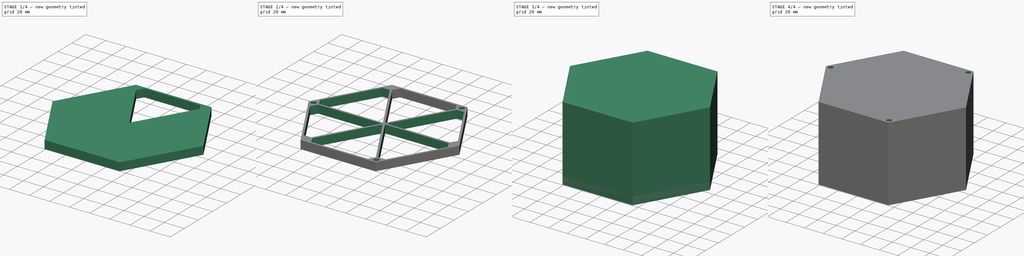
[diagram: build sequence overview — one tinted view per stage of 4, left to right]
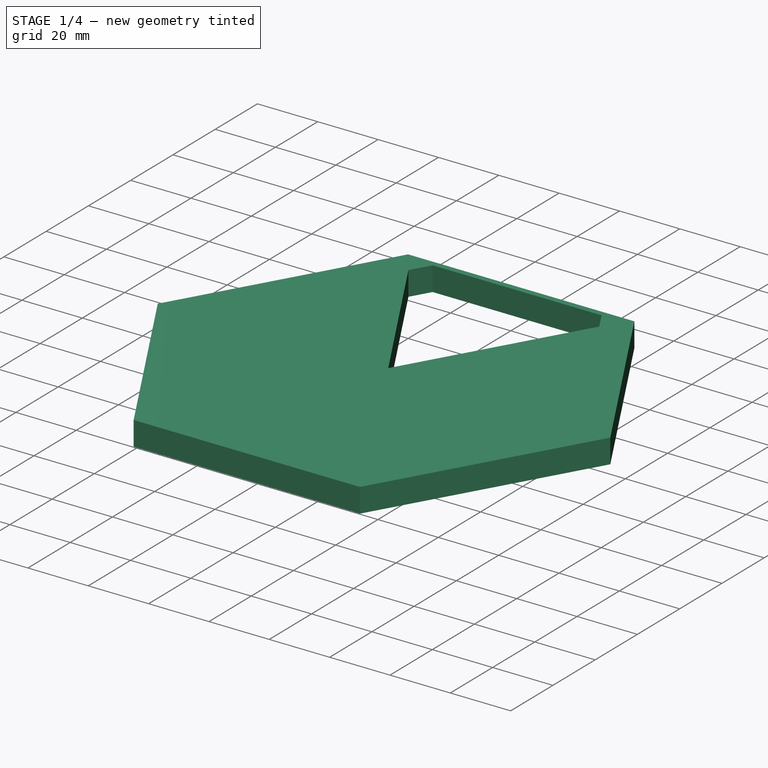
[diagram: stage 1 of 4 — iso view after this stage's code; geometry added in this stage tinted green]
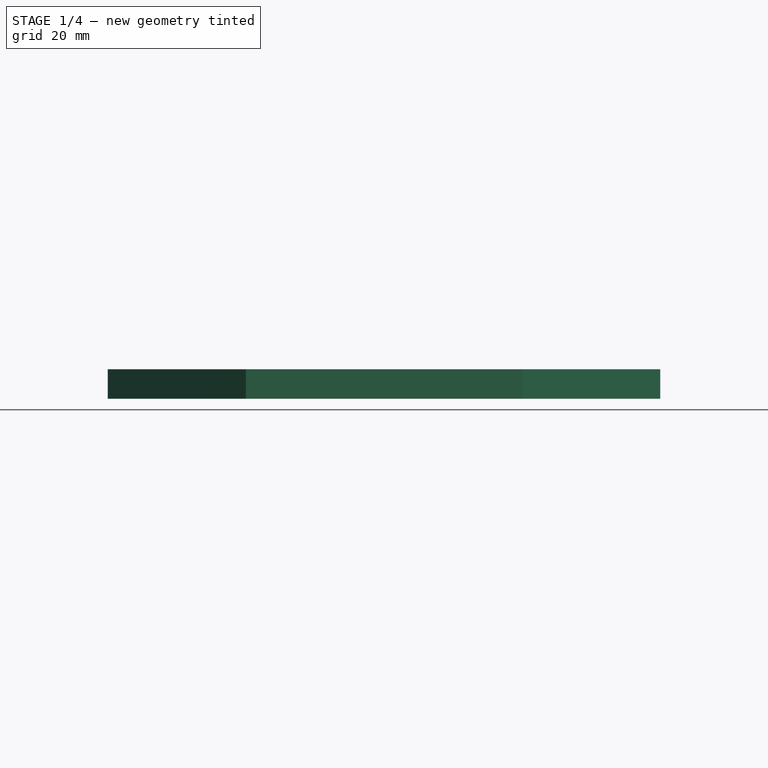
[diagram: stage 1 of 4 — front view after this stage's code; geometry added in this stage tinted green]
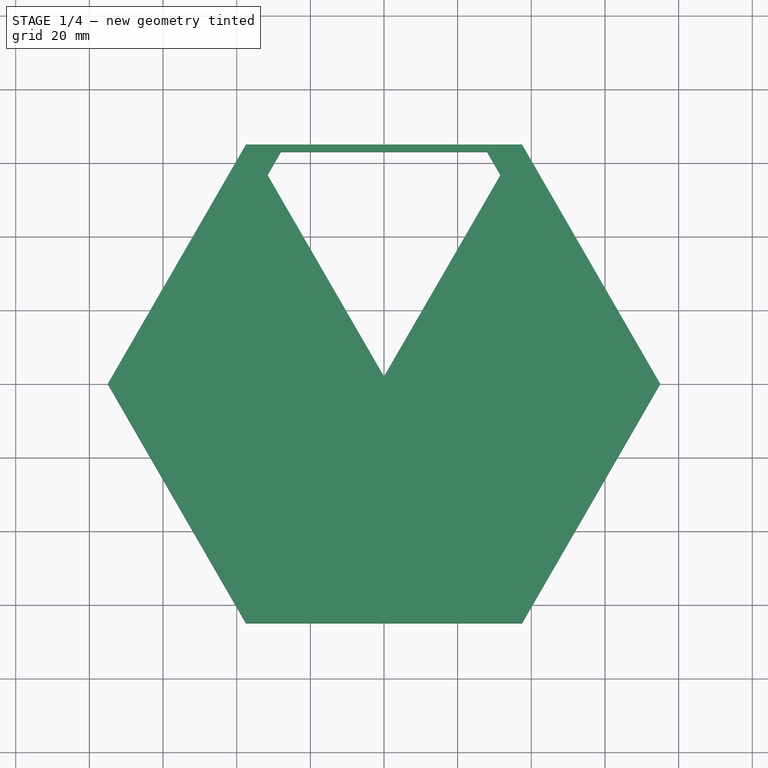
[diagram: stage 1 of 4 — top view after this stage's code; geometry added in this stage tinted green]
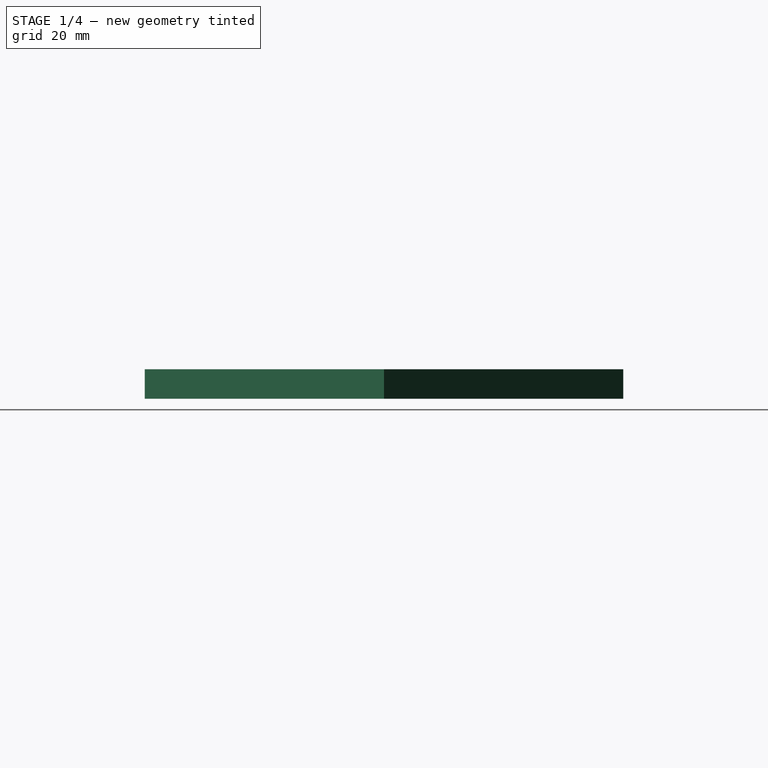
[diagram: stage 1 of 4 — right view after this stage's code; geometry added in this stage tinted green]
FCSTD DOCUMENT  (FreeCAD 0.19R)
Label: MultiPlantPotter_prototype2
License: All rights reserved
LicenseURL: http://en.wikipedia.org/wiki/All_rights_reserved
objects: Sketcher::SketchObject×6, PartDesign::Pocket×4, PartDesign::PolarPattern×4, PartDesign::Pad×2, PartDesign::Body×2
note: 24 computed .brp shape members not serialized (recipe doc carries the construction recipe); baked Part::Feature solids carry a one-line shape summary decoded from their .brp

FEATURE [PartDesign::Body] Body  label="pot"
  Group = -> [Sketch,Pad,Sketch001,Pocket,PolarPattern,Sketch002,Pocket001,PolarPattern001]
  Origin = -> Origin
  Tip = -> PolarPattern001
FEATURE [Sketcher::SketchObject] Sketch003
  FullyConstrained = true
  MapMode = 5
  Support = -> [XY_Plane001]
  sketch-geometry (1):
    g0: Circle CenterX=-70 CenterY=0 CenterZ=0 NormalX=0 NormalY=0 NormalZ=1 AngleXU=0 Radius=2.5
  constraints (3):
    c: Radius(g0) = 2.5
    c: Distance(g-1,g0) = 70
    c: DistanceY(g0,g-1) = 0
FEATURE [Sketcher::SketchObject] Sketch004
  FullyConstrained = false
  MapMode = 5
  Support = -> [XY_Plane001]
  sketch-geometry (5):
    g0: LineSegment StartX=3.6e-15 StartY=2 StartZ=0 EndX=31.626 EndY=56.7196 EndZ=0
    g1: LineSegment StartX=28 StartY=63 StartZ=0 EndX=-28 EndY=63 EndZ=0
    g2: LineSegment StartX=-31.626 StartY=56.7196 StartZ=0 EndX=3.6e-15 EndY=2 EndZ=0
    g3: LineSegment StartX=28 StartY=63 StartZ=0 EndX=31.626 EndY=56.7196 EndZ=0
    g4: LineSegment StartX=-31.626 StartY=56.7196 StartZ=0 EndX=-28 EndY=63 EndZ=0
  constraints (13):
    c: PointOnObject(g0,g-2)
    c: Horizontal(g1)
    c: Coincident(g2,g0)
    c: DistanceY(g-1,g0) = 2
    c: Angle(g3) = -1.0472
    c: Angle(g4) = 1.0472
    c: Coincident(g2,g4)
    c: Coincident(g0,g3)
    c: Coincident(g1,g3)
    c: Coincident(g1,g4)
    c: Symmetric(g2,g0,g-2)
    c: DistanceY(g0,g1) = 61
    c: DistanceX(g1,g1) = 56
FEATURE [Sketcher::SketchObject] Sketch005
  FullyConstrained = true
  MapMode = 5
  Support = -> [XY_Plane001]
  sketch-geometry (7):
    g0: LineSegment StartX=75 StartY=0 StartZ=0 EndX=37.5 EndY=64.9519 EndZ=0
    g1: LineSegment StartX=37.5 StartY=64.9519 StartZ=0 EndX=-37.5 EndY=64.9519 EndZ=0
    g2: LineSegment StartX=-37.5 StartY=64.9519 StartZ=0 EndX=-75 EndY=0 EndZ=0
    g3: LineSegment StartX=-75 StartY=0 StartZ=0 EndX=-37.5 EndY=-64.9519 EndZ=0
    g4: LineSegment StartX=-37.5 StartY=-64.9519 StartZ=0 EndX=37.5 EndY=-64.9519 EndZ=0
    g5: LineSegment StartX=37.5 StartY=-64.9519 StartZ=0 EndX=75 EndY=0 EndZ=0
    g6: Circle CenterX=0 CenterY=0 CenterZ=0 NormalX=0 NormalY=0 NormalZ=1 AngleXU=0 Radius=75
  constraints (16):
    c: Coincident(g0,g1)
    c: Coincident(g1,g2)
    c: Coincident(g2,g3)
    c: Coincident(g3,g4)
    c: Coincident(g4,g5)
    c: Coincident(g5,g0)
    c: Equal(g0, g1-g5) x5
    c: PointOnObject(g0,g6)
    c: PointOnObject(g1,g6)
    c: PointOnObject(g2,g6)
    c: PointOnObject(g3,g6)
    c: PointOnObject(g4,g6)
    c: PointOnObject(g5,g6)
    c: Coincident(g6,g-1)
    c: PointOnObject(g5,g-1)
    c: Radius(g6) = 75
FEATURE [PartDesign::Pad] Pad001
  Direction = (1,1,1)
  Length = 8
  Length2 = 100
  Profile = -> Sketch005
  Type = 0
FEATURE [PartDesign::Pocket] Pocket002
  BaseFeature = -> Pad001
  Length = 78
  Length2 = 100
  Profile = -> Sketch004
  Reversed = true
  Type = 0
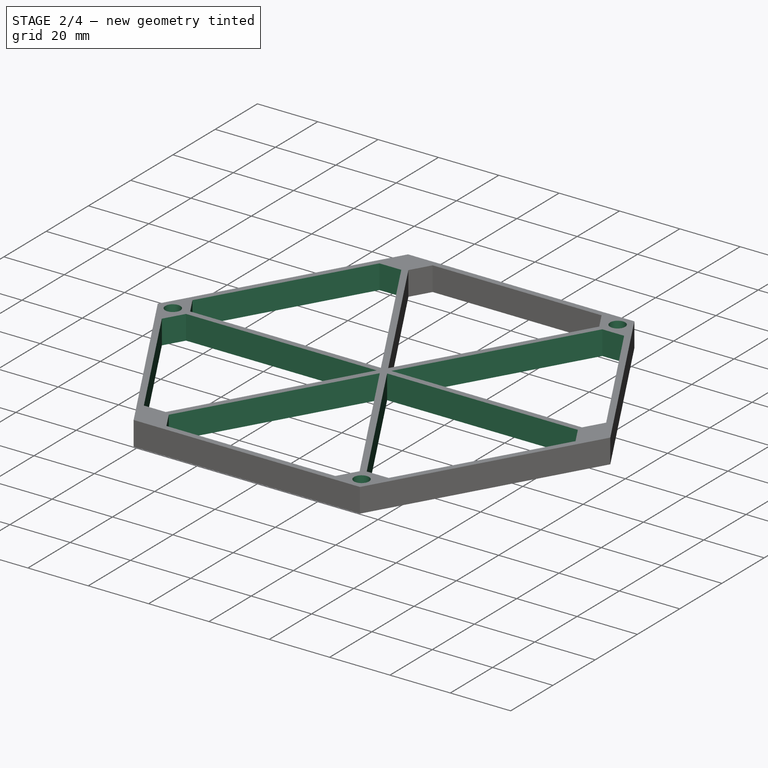
[diagram: stage 2 of 4 — iso view after this stage's code; geometry added in this stage tinted green]
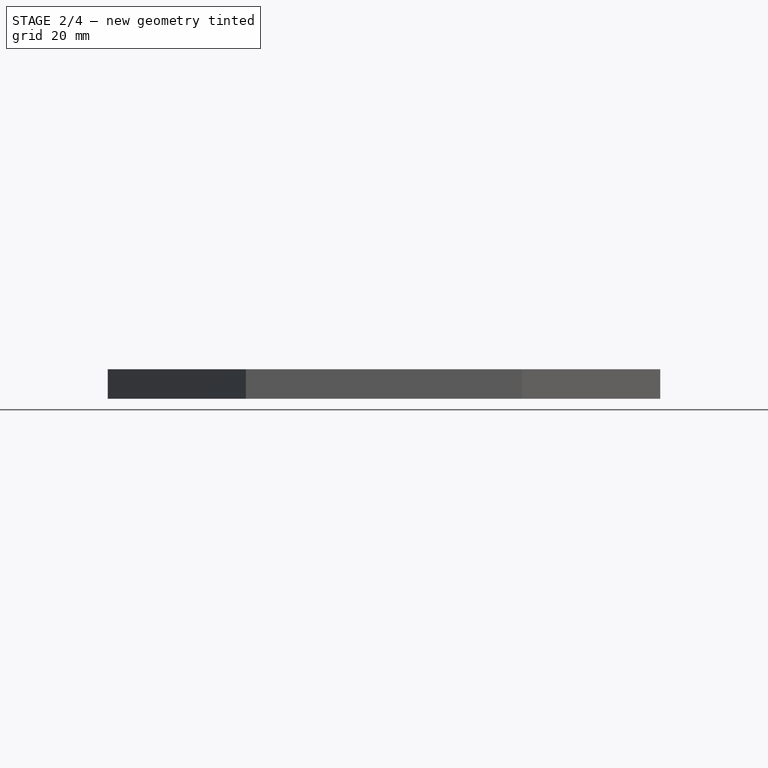
[diagram: stage 2 of 4 — front view after this stage's code; geometry added in this stage tinted green]
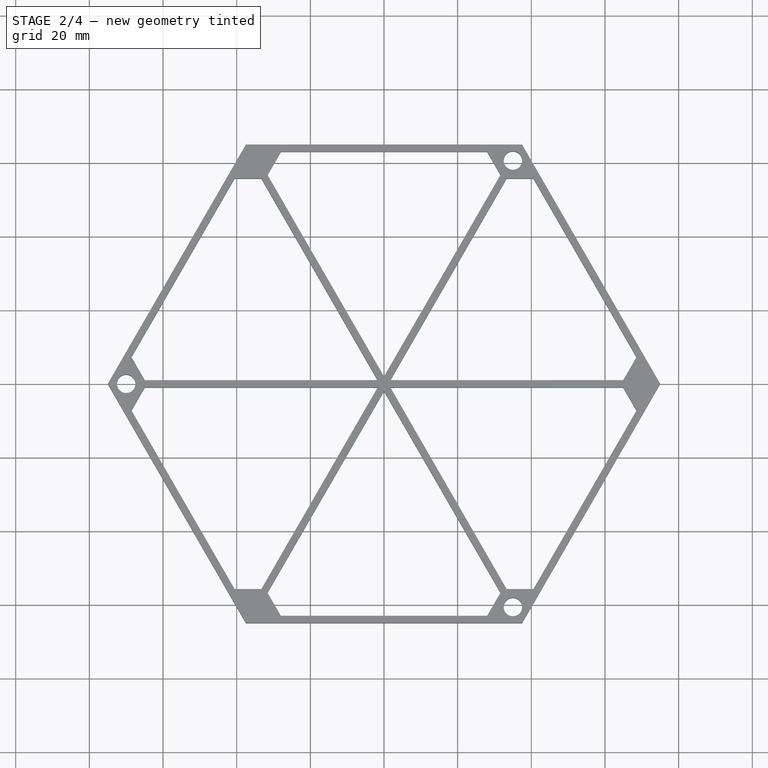
[diagram: stage 2 of 4 — top view after this stage's code; geometry added in this stage tinted green]
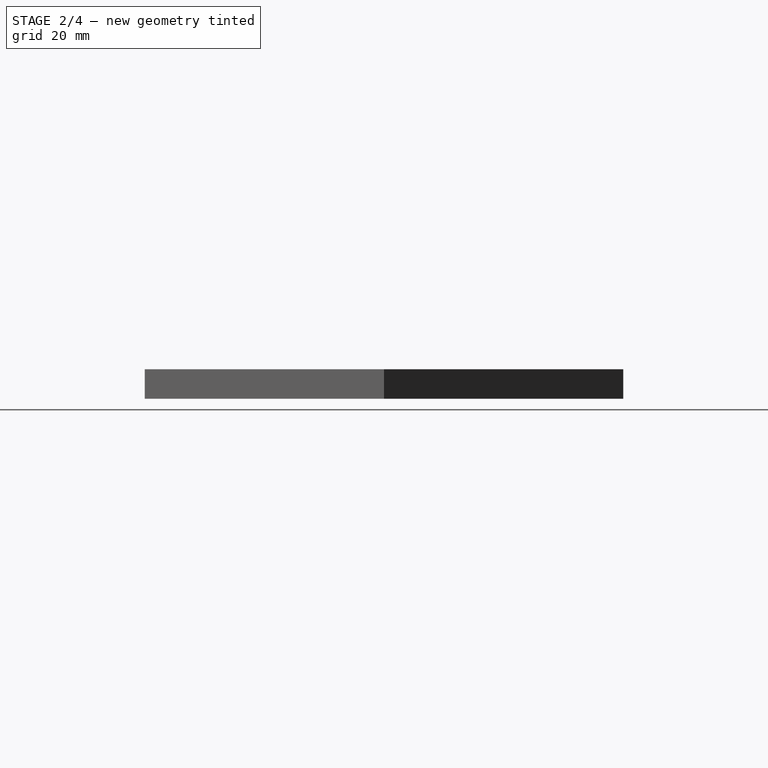
[diagram: stage 2 of 4 — right view after this stage's code; geometry added in this stage tinted green]
FEATURE [PartDesign::PolarPattern] PolarPattern002
  Angle = 360
  Axis = -> Sketch004 [N_Axis]
  BaseFeature = -> Pocket002
  Occurrences = 6
  Originals = -> [Pocket002]
FEATURE [PartDesign::Pocket] Pocket003
  BaseFeature = -> PolarPattern002
  Length = 5
  Length2 = 100
  Profile = -> Sketch003
  Reversed = true
  Type = 1
FEATURE [PartDesign::PolarPattern] PolarPattern003
  Angle = 360
  Axis = -> Sketch003 [N_Axis]
  BaseFeature = -> Pocket003
  Occurrences = 3
  Originals = -> [Pocket003]
FEATURE [PartDesign::Body] Body001  label="support"
  Group = -> [Sketch005,Pad001,Sketch004,Pocket002,PolarPattern002,Sketch003,Pocket003,PolarPattern003]
  Origin = -> Origin001
  Placement = pos=(0,0,-100) rot=(0,0,1;0rad)
  Tip = -> PolarPattern003
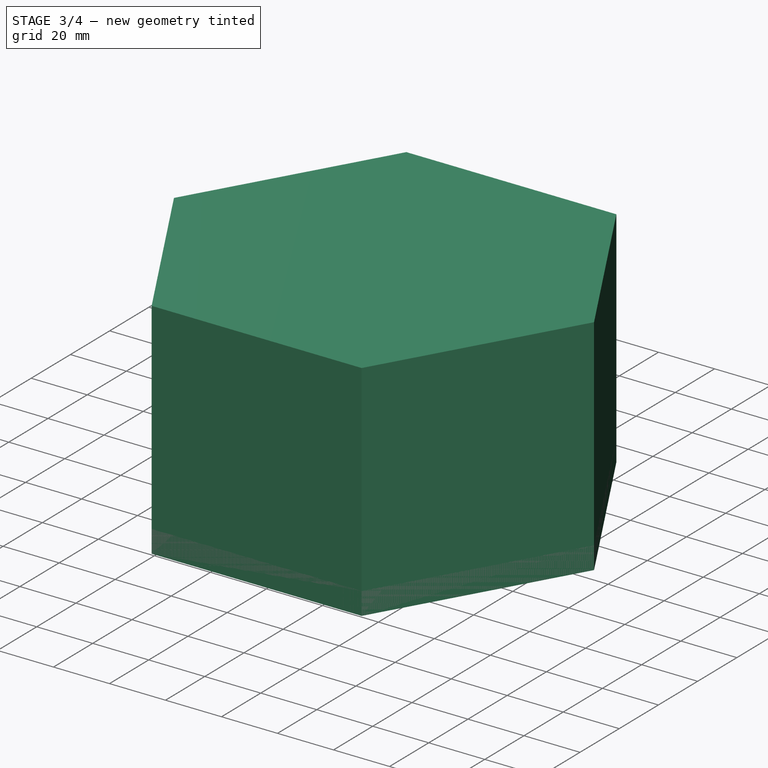
[diagram: stage 3 of 4 — iso view after this stage's code; geometry added in this stage tinted green]
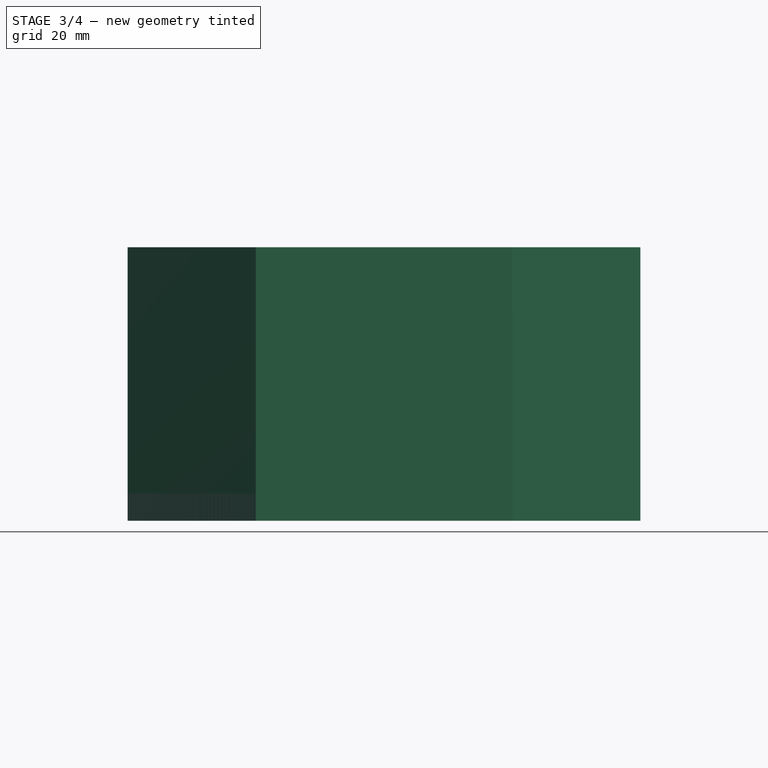
[diagram: stage 3 of 4 — front view after this stage's code; geometry added in this stage tinted green]
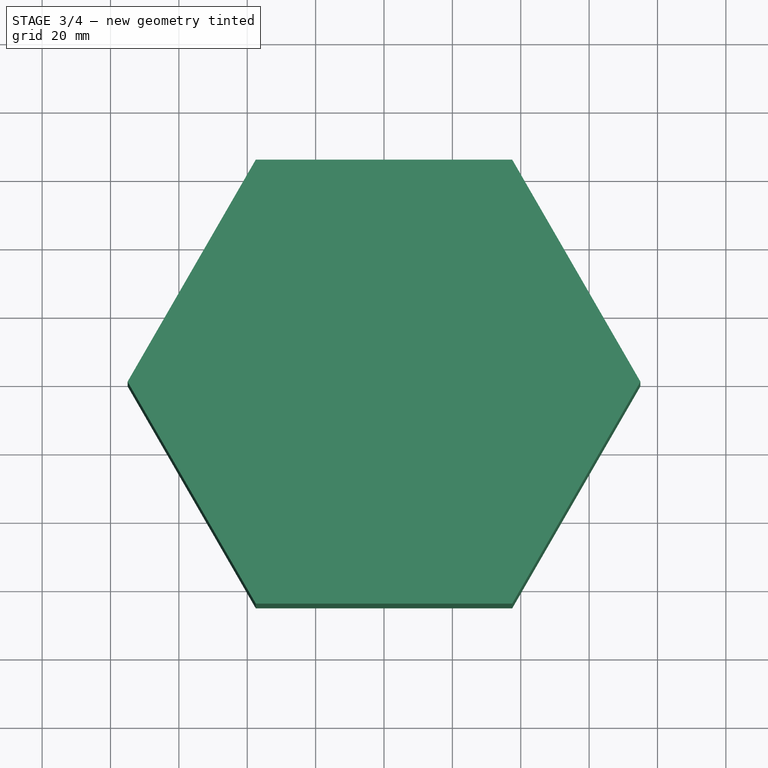
[diagram: stage 3 of 4 — top view after this stage's code; geometry added in this stage tinted green]
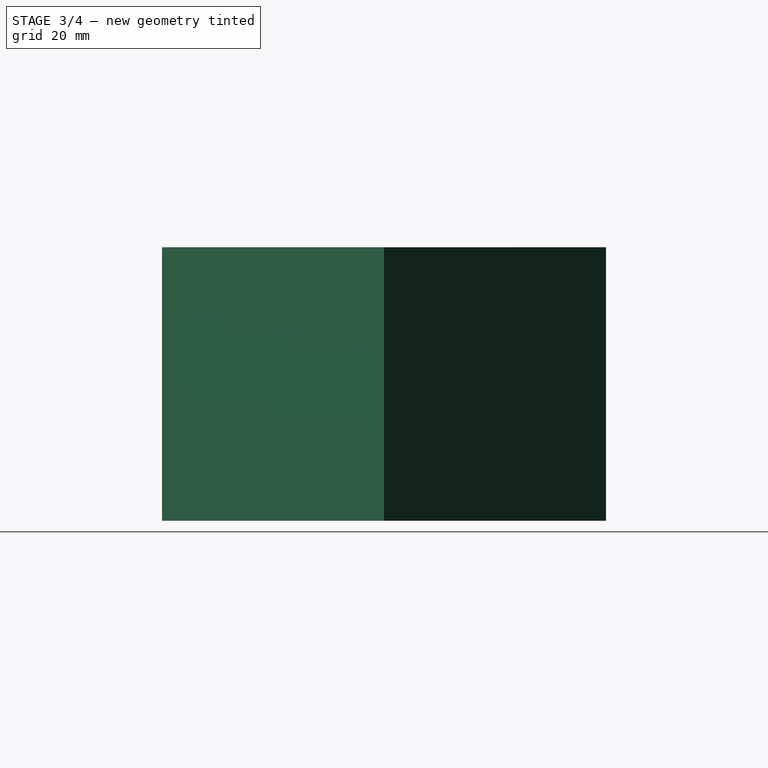
[diagram: stage 3 of 4 — right view after this stage's code; geometry added in this stage tinted green]
FEATURE [Sketcher::SketchObject] Sketch
  FullyConstrained = true
  MapMode = 5
  Support = -> [XY_Plane]
  sketch-geometry (7):
    g0: LineSegment StartX=75 StartY=0 StartZ=0 EndX=37.5 EndY=64.9519 EndZ=0
    g1: LineSegment StartX=37.5 StartY=64.9519 StartZ=0 EndX=-37.5 EndY=64.9519 EndZ=0
    g2: LineSegment StartX=-37.5 StartY=64.9519 StartZ=0 EndX=-75 EndY=0 EndZ=0
    g3: LineSegment StartX=-75 StartY=0 StartZ=0 EndX=-37.5 EndY=-64.9519 EndZ=0
    g4: LineSegment StartX=-37.5 StartY=-64.9519 StartZ=0 EndX=37.5 EndY=-64.9519 EndZ=0
    g5: LineSegment StartX=37.5 StartY=-64.9519 StartZ=0 EndX=75 EndY=0 EndZ=0
    g6: Circle CenterX=0 CenterY=0 CenterZ=0 NormalX=0 NormalY=0 NormalZ=1 AngleXU=0 Radius=75
  constraints (16):
    c: Coincident(g0,g1)
    c: Coincident(g1,g2)
    c: Coincident(g2,g3)
    c: Coincident(g3,g4)
    c: Coincident(g4,g5)
    c: Coincident(g5,g0)
    c: Equal(g0, g1-g5) x5
    c: PointOnObject(g0,g6)
    c: PointOnObject(g1,g6)
    c: PointOnObject(g2,g6)
    c: PointOnObject(g3,g6)
    c: PointOnObject(g4,g6)
    c: PointOnObject(g5,g6)
    c: Coincident(g6,g-1)
    c: PointOnObject(g5,g-1)
    c: Radius(g6) = 75
FEATURE [PartDesign::Pad] Pad
  Direction = (1,1,1)
  Length = 80
  Length2 = 100
  Profile = -> Sketch
  Type = 0
FEATURE [Sketcher::SketchObject] Sketch001
  FullyConstrained = false
  MapMode = 5
  Support = -> [XY_Plane]
  sketch-geometry (5):
    g0: LineSegment StartX=3.6e-15 StartY=2 StartZ=0 EndX=31.626 EndY=56.7196 EndZ=0
    g1: LineSegment StartX=28 StartY=63 StartZ=0 EndX=-28 EndY=63 EndZ=0
    g2: LineSegment StartX=-31.626 StartY=56.7196 StartZ=0 EndX=3.6e-15 EndY=2 EndZ=0
    g3: LineSegment StartX=28 StartY=63 StartZ=0 EndX=31.626 EndY=56.7196 EndZ=0
    g4: LineSegment StartX=-31.626 StartY=56.7196 StartZ=0 EndX=-28 EndY=63 EndZ=0
  constraints (13):
    c: PointOnObject(g0,g-2)
    c: Horizontal(g1)
    c: Coincident(g2,g0)
    c: DistanceY(g-1,g0) = 2
    c: Angle(g3) = -1.0472
    c: Angle(g4) = 1.0472
    c: Coincident(g2,g4)
    c: Coincident(g0,g3)
    c: Coincident(g1,g3)
    c: Coincident(g1,g4)
    c: Symmetric(g2,g0,g-2)
    c: DistanceY(g0,g1) = 61
    c: DistanceX(g1,g1) = 56
FEATURE [PartDesign::Pocket] Pocket
  BaseFeature = -> Pad
  Length = 78
  Length2 = 100
  Profile = -> Sketch001
  Reversed = true
  Type = 0
FEATURE [PartDesign::PolarPattern] PolarPattern
  Angle = 360
  Axis = -> Sketch001 [N_Axis]
  BaseFeature = -> Pocket
  Occurrences = 6
  Originals = -> [Pocket]
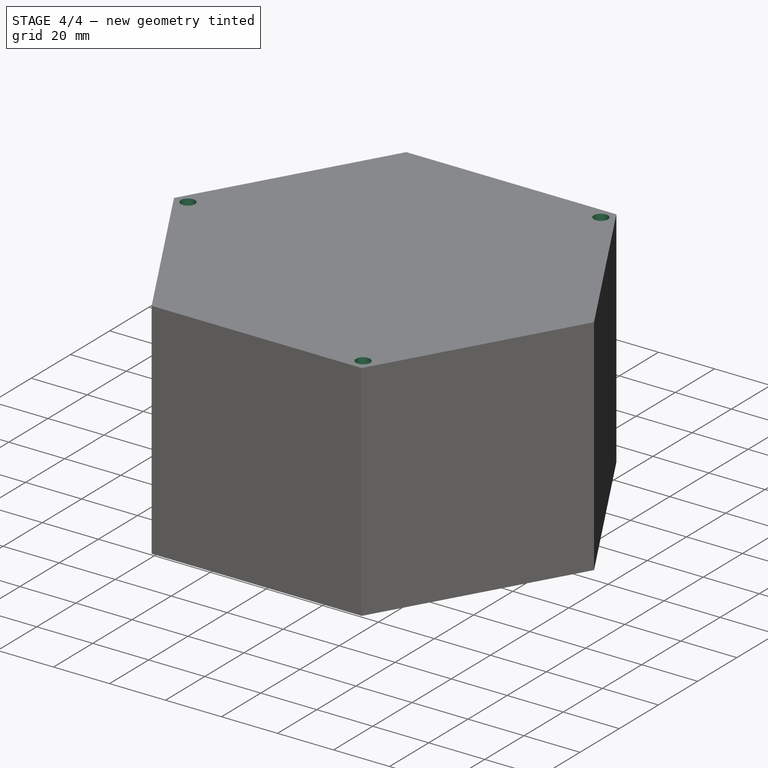
[diagram: stage 4 of 4 — iso view after this stage's code; geometry added in this stage tinted green]
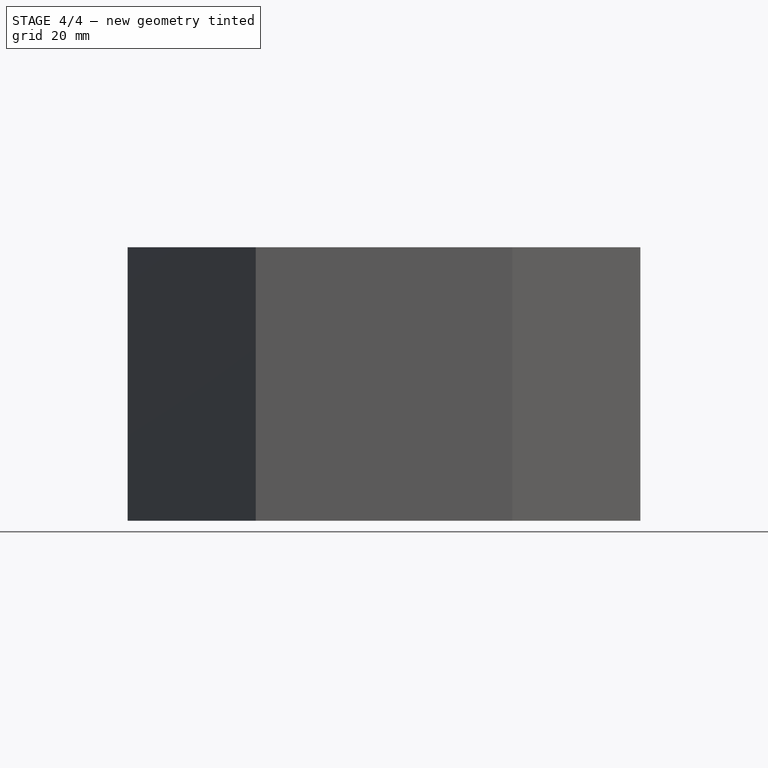
[diagram: stage 4 of 4 — front view after this stage's code; geometry added in this stage tinted green]
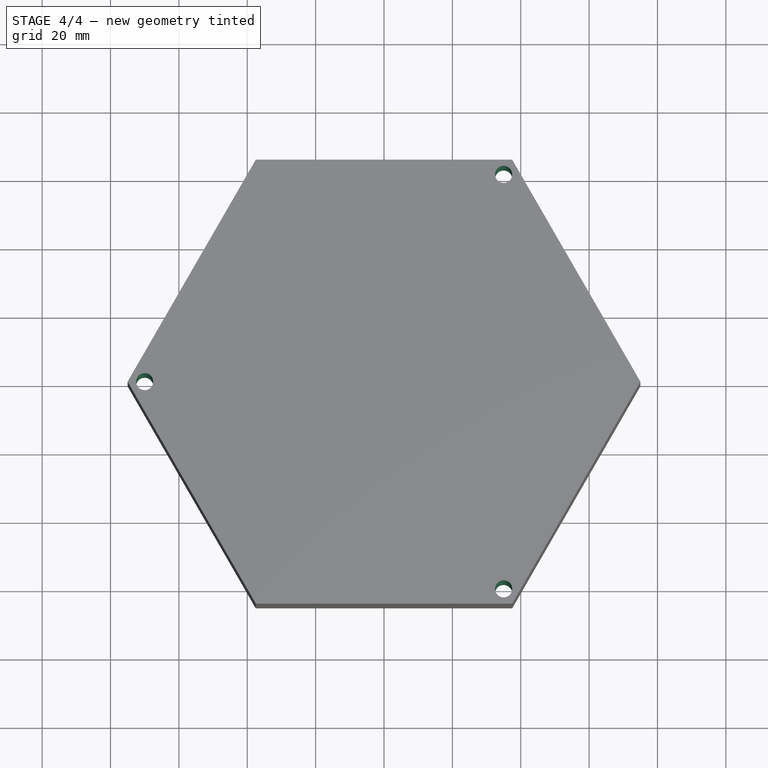
[diagram: stage 4 of 4 — top view after this stage's code; geometry added in this stage tinted green]
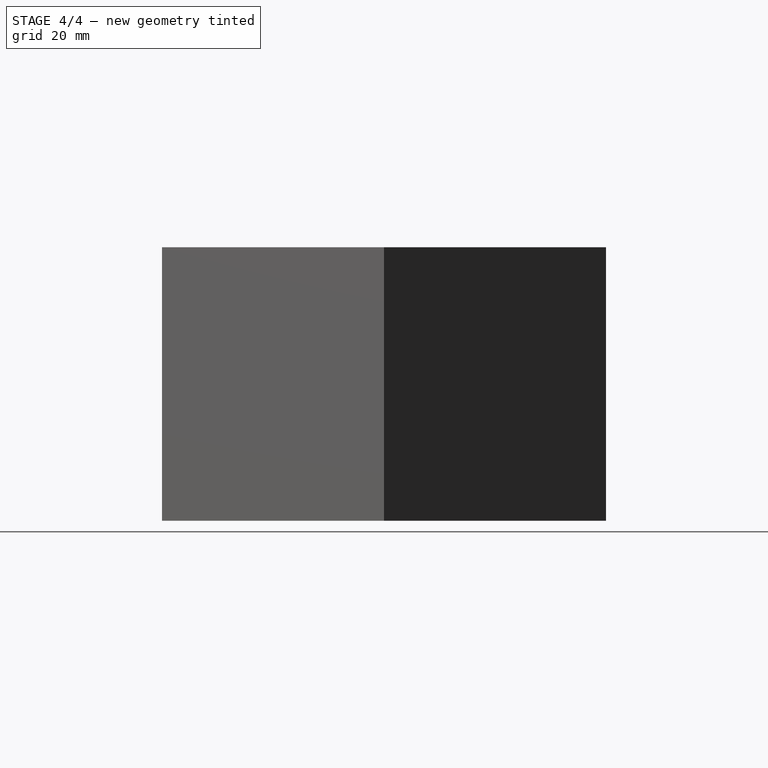
[diagram: stage 4 of 4 — right view after this stage's code; geometry added in this stage tinted green]
FEATURE [Sketcher::SketchObject] Sketch002
  FullyConstrained = true
  MapMode = 5
  Support = -> [XY_Plane]
  sketch-geometry (1):
    g0: Circle CenterX=-70 CenterY=0 CenterZ=0 NormalX=0 NormalY=0 NormalZ=1 AngleXU=0 Radius=2.5
  constraints (3):
    c: Radius(g0) = 2.5
    c: Distance(g-1,g0) = 70
    c: DistanceY(g0,g-1) = 0
FEATURE [PartDesign::Pocket] Pocket001
  BaseFeature = -> PolarPattern
  Length = 5
  Length2 = 100
  Profile = -> Sketch002
  Reversed = true
  Type = 1
FEATURE [PartDesign::PolarPattern] PolarPattern001
  Angle = 360
  Axis = -> Sketch002 [N_Axis]
  BaseFeature = -> Pocket001
  Occurrences = 3
  Originals = -> [Pocket001]
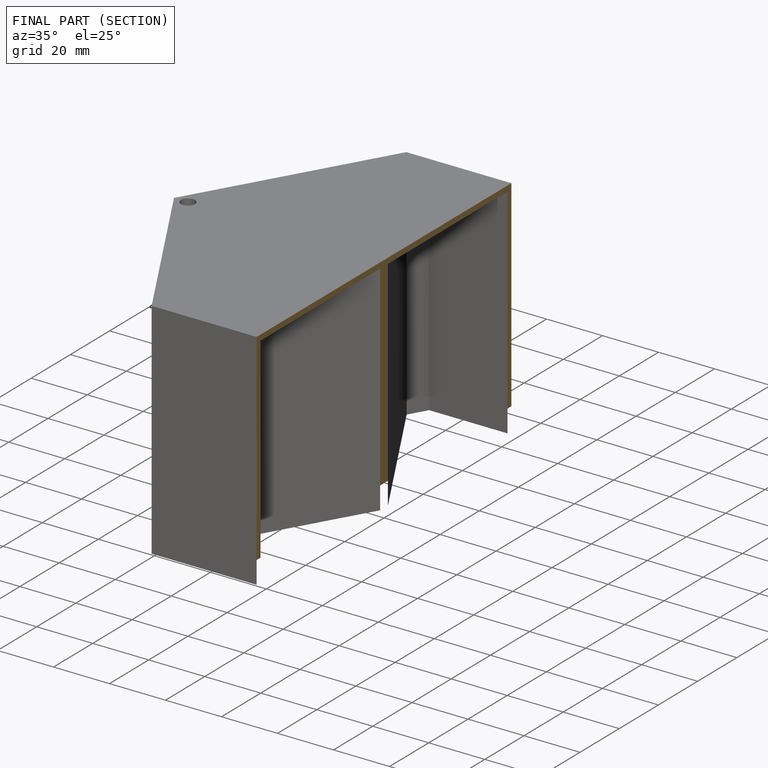
[diagram: finished part — half-section view (interior)]
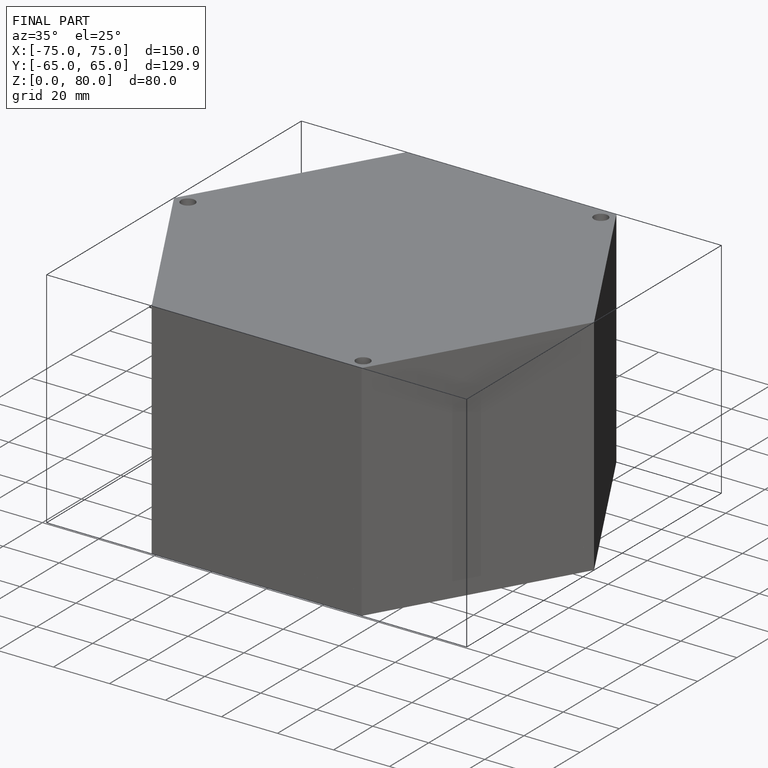
[diagram: finished part — iso view with bounding-box wireframe]
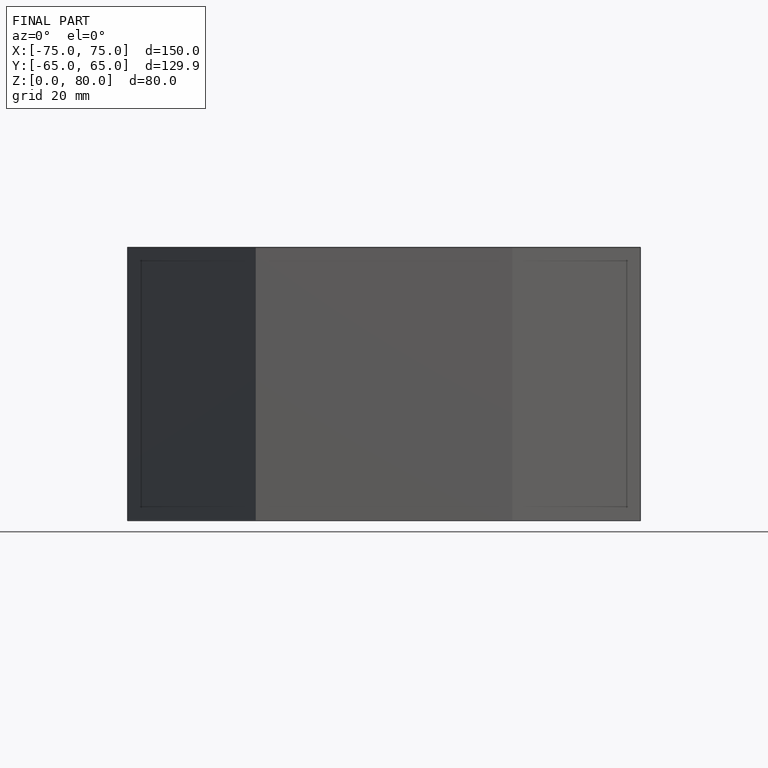
[diagram: finished part — front view with bounding-box wireframe]
